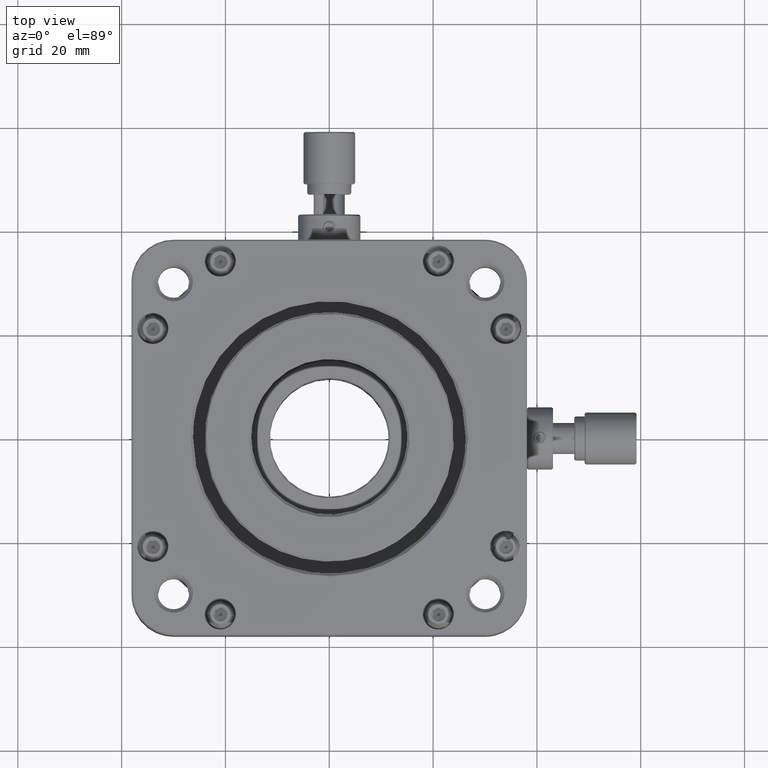
[diagram: clean part render]
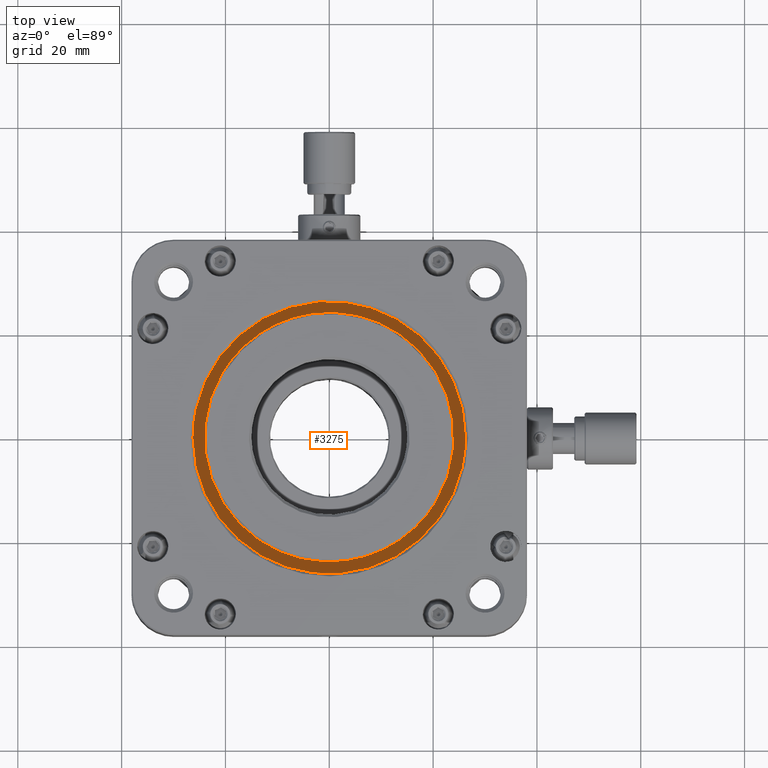
[diagram: same view with one face highlighted and labeled with its STEP entity id]
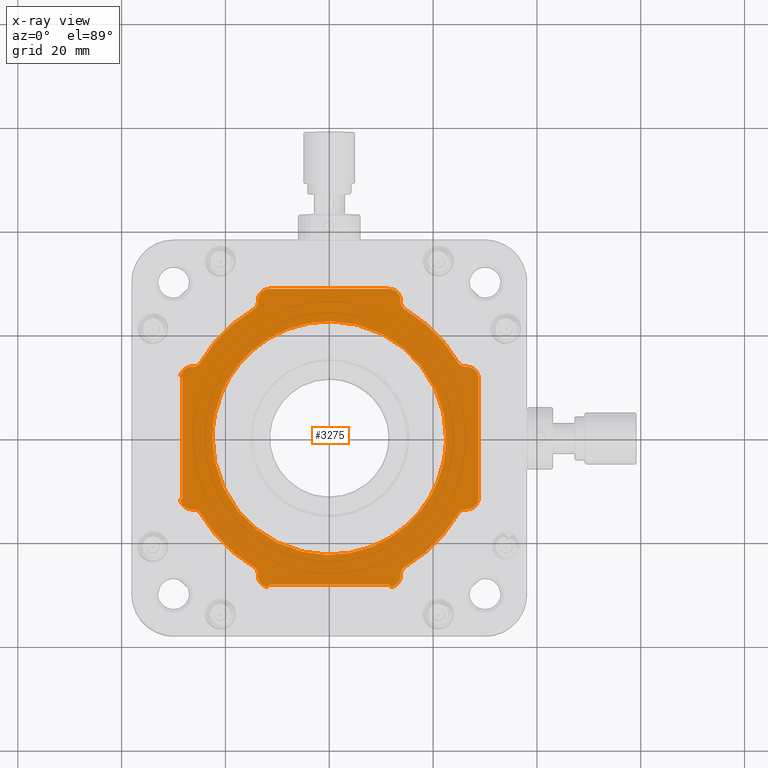
[diagram: x-ray of the same camera — body ghosted, the highlighted face saturated]
A machine part, top view. The second image highlights one B-rep face of the part: STEP entity #3275.
The next image is the same camera in x-ray: the body ghosted, the highlighted face saturated — about 0% of this face is hidden behind the body in this view.
In plain terms, the highlighted face is a freeform B-spline surface patch.
Its self-contained STEP definition (entity closure, byte-faithful):
#98 = CARTESIAN_POINT ( 'NONE',  ( -11.50000000000019895, 28.74999999999944933, 3.999999999999144684 ) ) ;
#248 = CARTESIAN_POINT ( 'NONE',  ( -13.75000000000052047, -25.96351153722971716, 3.999999999999142464 ) ) ;
#251 = CARTESIAN_POINT ( 'NONE',  ( 13.74999999999923794, -26.26785107312819889, 3.999999999999150013 ) ) ;
#318 = CARTESIAN_POINT ( 'NONE',  ( -13.75000000000060041, -26.50000000000060041, 3.999999999999144684 ) ) ;
#385 = EDGE_LOOP ( 'NONE', ( #20460, #19325 ) ) ;
#396 = B_SPLINE_CURVE_WITH_KNOTS ( 'NONE', 3,
 ( #8572, #499, #8692, #24654, #10729, #4270, #18594, #24787, #6151, #98 ),
 .UNSPECIFIED., .F., .F.,
 ( 4, 2, 2, 2, 4 ),
 ( -1.000000000000000000, -0.7500000000000000000, -0.5000000000000000000, -0.2500000000000000000, -0.000000000000000000 ),
 .UNSPECIFIED. ) ;
#414 = CARTESIAN_POINT ( 'NONE',  ( -24.76067929024345204, -14.61065573770557968, 3.999999999999140687 ) ) ;
#499 = CARTESIAN_POINT ( 'NONE',  ( -13.75000000000008349, 26.79835122402761627, 3.999999999999142464 ) ) ;
#536 = CARTESIAN_POINT ( 'NONE',  ( -26.50000000000049738, -13.75000000000060041, 3.999999999999140687 ) ) ;
#631 = FACE_OUTER_BOUND ( 'NONE', #4859, .T. ) ;
#822 = CARTESIAN_POINT ( 'NONE',  ( 13.74999999999959854, 26.49999999999934985, 3.999999999999150013 ) ) ;
#830 = B_SPLINE_CURVE_WITH_KNOTS ( 'NONE', 1,
 ( #10157, #18280 ),
 .UNSPECIFIED., .F., .F.,
 ( 2, 2 ),
 ( -1.000000000000000000, -0.000000000000000000 ),
 .UNSPECIFIED. ) ;
#919 = B_SPLINE_CURVE_WITH_KNOTS ( 'NONE', 3,
 ( #16685, #26302, #22765, #4397, #6547, #4526, #10321, #8564, #12630, #8297 ),
 .UNSPECIFIED., .F., .F.,
 ( 4, 2, 2, 2, 4 ),
 ( -1.000000000000000000, -0.7500000000000000000, -0.5000000000000000000, -0.2500000000000000000, -0.000000000000000000 ),
 .UNSPECIFIED. ) ;
#965 = EDGE_CURVE ( 'NONE', #22274, #22051, #13403, .T. ) ;
#986 = CARTESIAN_POINT ( 'NONE',  ( 13.74999999999923794, -26.26785107312819889, 3.999999999999150013 ) ) ;
#1062 = CARTESIAN_POINT ( 'NONE',  ( 13.30194980097353152, 27.88004009014238349, 3.999999999999146461 ) ) ;
#1134 = CARTESIAN_POINT ( 'NONE',  ( 28.74999999999953815, 11.79838587626113267, 3.999999999999150013 ) ) ;
#1185 = EDGE_CURVE ( 'NONE', #17849, #14123, #18858, .T. ) ;
#1186 = CARTESIAN_POINT ( 'NONE',  ( 26.26785107312669609, -13.75000000000100009, 3.999999999999150013 ) ) ;
#1217 = CARTESIAN_POINT ( 'NONE',  ( -22.50000000000049738, -6.055234243960429280E-13, 3.999999999999140687 ) ) ;
#1400 = CARTESIAN_POINT ( 'NONE',  ( 26.79835122402048242, 13.74999999999946532, 3.999999999999149125 ) ) ;
#1429 = CARTESIAN_POINT ( 'NONE',  ( -11.50000000000069456, -27.80000000000049809, 3.999999999999908074 ) ) ;
#1461 = VERTEX_POINT ( 'NONE', #24202 ) ;
#1496 = EDGE_CURVE ( 'NONE', #24271, #13898, #830, .T. ) ;
#1515 = ORIENTED_EDGE ( 'NONE', *, *, #18861, .F. ) ;
#1534 = CARTESIAN_POINT ( 'NONE',  ( 27.08540938439834989, 13.69289076818723316, 3.999999999999150013 ) ) ;
#1552 = CARTESIAN_POINT ( 'NONE',  ( 26.49999999999955236, 13.74999999999939959, 3.999999999999150013 ) ) ;
#1605 = CARTESIAN_POINT ( 'NONE',  ( 28.74999999999944933, -11.50000000000099831, 3.999999999999150013 ) ) ;
#1620 = CARTESIAN_POINT ( 'NONE',  ( -11.50000000000019895, 28.74999999999944933, 3.999999999999144684 ) ) ;
#1828 = CARTESIAN_POINT ( 'NONE',  ( -13.82941172880655500, 25.66430499280422950, 3.999999999999142464 ) ) ;
#1857 = CARTESIAN_POINT ( 'NONE',  ( 21.18531010641744672, 19.47333278919100508, 3.999999999999148237 ) ) ;
#1970 = CARTESIAN_POINT ( 'NONE',  ( -28.27500000000045333, -11.50000000000054001, 3.999999999999415579 ) ) ;
#2116 = CARTESIAN_POINT ( 'NONE',  ( 28.74999999999959854, 28.74999999999930012, 3.999999999999150013 ) ) ;
#2268 = CARTESIAN_POINT ( 'NONE',  ( 14.61065573770430071, -24.76067929024380021, 3.999999999999150013 ) ) ;
#2385 = EDGE_CURVE ( 'NONE', #4476, #6704, #26541, .T. ) ;
#2396 = VERTEX_POINT ( 'NONE', #26062 ) ;
#2556 = VERTEX_POINT ( 'NONE', #15118 ) ;
#2582 = B_SPLINE_CURVE_WITH_KNOTS ( 'NONE', 3,
 ( #23315, #15333, #5054, #25329, #11002, #19526 ),
 .UNSPECIFIED., .F., .F.,
 ( 4, 2, 4 ),
 ( -1.000000000000000000, -0.5000000000000000000, -0.000000000000000000 ),
 .UNSPECIFIED. ) ;
#2621 = CARTESIAN_POINT ( 'NONE',  ( 26.49999999999944933, -13.75000000000100009, 3.999999999999150013 ) ) ;
#2758 = VERTEX_POINT ( 'NONE', #23627 ) ;
#2900 = CARTESIAN_POINT ( 'NONE',  ( -15.65327483654644425, 24.14545591368804267, 3.999999999999142908 ) ) ;
#3153 = B_SPLINE_CURVE_WITH_KNOTS ( 'NONE', 3,
 ( #11218, #9301, #17568, #11751, #19596, #25788, #21627, #17964, #20004, #26187 ),
 .UNSPECIFIED., .F., .F.,
 ( 4, 2, 2, 2, 4 ),
 ( -1.000000000000000000, -0.7500000000000000000, -0.5000000000000000000, -0.2500000000000000000, -0.000000000000000000 ),
 .UNSPECIFIED. ) ;
#3216 = CARTESIAN_POINT ( 'NONE',  ( 13.46454824691686980, 27.63667699512514631, 3.999999999999147349 ) ) ;
#3275 = ADVANCED_FACE ( 'NONE', ( #23171, #631 ), #12789, .T. ) ;
#3297 = EDGE_CURVE ( 'NONE', #24180, #12745, #396, .T. ) ;
#3330 = VERTEX_POINT ( 'NONE', #18983 ) ;
#3534 = CARTESIAN_POINT ( 'NONE',  ( -13.75000000000060041, -26.26785107312789691, 3.999999999999144684 ) ) ;
#3571 = CARTESIAN_POINT ( 'NONE',  ( 27.63666606124350267, 13.46456712811252565, 3.999999999999150013 ) ) ;
#3648 = EDGE_CURVE ( 'NONE', #12745, #15845, #9675, .T. ) ;
#3825 = EDGE_CURVE ( 'NONE', #14123, #14577, #5504, .T. ) ;
#3923 = CARTESIAN_POINT ( 'NONE',  ( -25.13579206756573114, 14.13121387687324670, 3.999999999999141576 ) ) ;
#3993 = VERTEX_POINT ( 'NONE', #6360 ) ;
#4024 = CARTESIAN_POINT ( 'NONE',  ( -26.26785107312789691, -13.75000000000055955, 3.999999999999140687 ) ) ;
#4194 = ORIENTED_EDGE ( 'NONE', *, *, #18390, .F. ) ;
#4270 = CARTESIAN_POINT ( 'NONE',  ( -12.88004009013650553, 28.30194980098267266, 3.999999999999142908 ) ) ;
#4313 = CARTESIAN_POINT ( 'NONE',  ( 11.49999999999960032, 28.74999999999934985, 3.999999999999144684 ) ) ;
#4314 = CARTESIAN_POINT ( 'NONE',  ( -27.88003071436140345, -13.30194042520856890, 3.999999999999140687 ) ) ;
#4324 = CARTESIAN_POINT ( 'NONE',  ( -21.18531010758993816, -19.47333278800151746, 3.999999999999140687 ) ) ;
#4394 = CARTESIAN_POINT ( 'NONE',  ( -13.75000000000060041, -26.26785107312789691, 3.999999999999144684 ) ) ;
#4397 = CARTESIAN_POINT ( 'NONE',  ( 13.46456712810837253, -27.63666606125807590, 3.999999999999147349 ) ) ;
#4430 = EDGE_CURVE ( 'NONE', #10954, #7359, #20659, .T. ) ;
#4476 = VERTEX_POINT ( 'NONE', #12473 ) ;
#4526 = CARTESIAN_POINT ( 'NONE',  ( 12.88004009008466255, -28.30194980100985092, 3.999999999999148237 ) ) ;
#4565 = CARTESIAN_POINT ( 'NONE',  ( 13.74999999999959854, 26.26785107312669609, 3.999999999999150013 ) ) ;
#4598 = CARTESIAN_POINT ( 'NONE',  ( -22.50000000000049738, -6.055234243960429280E-13, 3.999999999999140687 ) ) ;
#4645 = CARTESIAN_POINT ( 'NONE',  ( -21.98411349738861276, 18.56682008198552225, 3.999999999999141576 ) ) ;
#4692 = CARTESIAN_POINT ( 'NONE',  ( -26.79838587623094881, 13.74999999999962341, 3.999999999999140687 ) ) ;
#4704 = CARTESIAN_POINT ( 'NONE',  ( -23.46709536486446979, -16.65303365374226630, 3.999999999999142464 ) ) ;
#4859 = EDGE_LOOP ( 'NONE', ( #23153, #4889, #17879, #20580, #4194, #16096, #25157, #16849, #6536, #19770, #6234, #26253, #13116, #10748, #12737, #19906, #6113, #14463, #5725, #16713, #22989, #23797, #20612, #24403, #24976, #8193, #17821, #1515, #7730, #11148, #10509, #26061 ) ) ;
#4889 = ORIENTED_EDGE ( 'NONE', *, *, #22890, .F. ) ;
#4958 = CARTESIAN_POINT ( 'NONE',  ( 26.49999999999944933, -13.75000000000100009, 3.999999999999150013 ) ) ;
#4981 = CARTESIAN_POINT ( 'NONE',  ( 22.49999999999949907, -6.427822572771599099E-13, 3.999999999999144684 ) ) ;
#5054 = CARTESIAN_POINT ( 'NONE',  ( 25.13580069055921840, 14.13122897720175786, 3.999999999999148237 ) ) ;
#5078 = CARTESIAN_POINT ( 'NONE',  ( 13.69290964938301514, 27.08539845051663519, 3.999999999999148237 ) ) ;
#5093 = CARTESIAN_POINT ( 'NONE',  ( -11.50000000000060041, -28.75000000000056133, 3.999999999999142908 ) ) ;
#5191 = CARTESIAN_POINT ( 'NONE',  ( -25.96344373617076329, -13.75000000000064126, 3.999999999999141576 ) ) ;
#5221 = EDGE_CURVE ( 'NONE', #10717, #22274, #10578, .T. ) ;
#5251 = VERTEX_POINT ( 'NONE', #4024 ) ;
#5290 = CARTESIAN_POINT ( 'NONE',  ( -26.50000000000049738, -13.75000000000060041, 3.999999999999140687 ) ) ;
#5315 = CARTESIAN_POINT ( 'NONE',  ( 26.49999999999944933, -13.75000000000100009, 3.999999999999150013 ) ) ;
#5351 = CARTESIAN_POINT ( 'NONE',  ( 27.88004009014993301, -13.30194980098323754, 3.999999999999149125 ) ) ;
#5504 = B_SPLINE_CURVE_WITH_KNOTS ( 'NONE', 3,
 ( #4565, #24954, #6321, #12672, #6455, #20924 ),
 .UNSPECIFIED., .F., .F.,
 ( 4, 2, 4 ),
 ( -1.000000000000000000, -0.5000000000000000000, -0.000000000000000000 ),
 .UNSPECIFIED. ) ;
#5599 = CARTESIAN_POINT ( 'NONE',  ( -13.75000000000040146, 26.26785107312684531, 3.999999999999144684 ) ) ;
#5717 = CARTESIAN_POINT ( 'NONE',  ( 25.13579206766814877, -14.13121387679679941, 3.999999999999149125 ) ) ;
#5725 = ORIENTED_EDGE ( 'NONE', *, *, #965, .F. ) ;
#5728 = CARTESIAN_POINT ( 'NONE',  ( 24.76067929024249992, 14.61065573770433978, 3.999999999999150013 ) ) ;
#6113 = ORIENTED_EDGE ( 'NONE', *, *, #16873, .F. ) ;
#6151 = CARTESIAN_POINT ( 'NONE',  ( -11.79838587622782242, 28.74999999999943867, 3.999999999999143796 ) ) ;
#6234 = ORIENTED_EDGE ( 'NONE', *, *, #24710, .F. ) ;
#6321 = CARTESIAN_POINT ( 'NONE',  ( 13.82942682913912336, 25.66431361578245429, 3.999999999999148237 ) ) ;
#6360 = CARTESIAN_POINT ( 'NONE',  ( -26.26785107312779743, 13.74999999999955946, 3.999999999999140687 ) ) ;
#6375 = CARTESIAN_POINT ( 'NONE',  ( -12.88003071436716063, -28.30194042518967379, 3.999999999999142908 ) ) ;
#6397 = EDGE_CURVE ( 'NONE', #7359, #24180, #17083, .T. ) ;
#6422 = EDGE_CURVE ( 'NONE', #3330, #13654, #25713, .T. ) ;
#6455 = CARTESIAN_POINT ( 'NONE',  ( 14.34848765271519788, 24.91537810081576509, 3.999999999999148237 ) ) ;
#6536 = ORIENTED_EDGE ( 'NONE', *, *, #16965, .F. ) ;
#6547 = CARTESIAN_POINT ( 'NONE',  ( 13.30194042525332243, -27.88003071433081104, 3.999999999999147349 ) ) ;
#6656 = EDGE_CURVE ( 'NONE', #18571, #10954, #12523, .T. ) ;
#6704 = VERTEX_POINT ( 'NONE', #17341 ) ;
#6723 = CARTESIAN_POINT ( 'NONE',  ( 12.63666606124142433, 28.46456712810185863, 3.999999999999146461 ) ) ;
#6805 = CARTESIAN_POINT ( 'NONE',  ( -24.76067929024350178, 14.61065573770433978, 3.999999999999140687 ) ) ;
#6885 = CARTESIAN_POINT ( 'NONE',  ( -22.50000000000059330, -45.00000000000004974, 3.999999999999132694 ) ) ;
#6988 = B_SPLINE_CURVE_WITH_KNOTS ( 'NONE', 1,
 ( #23800, #5290 ),
 .UNSPECIFIED., .F., .F.,
 ( 2, 2 ),
 ( -1.000000000000000000, -0.000000000000000000 ),
 .UNSPECIFIED. ) ;
#6990 = CARTESIAN_POINT ( 'NONE',  ( -26.50000000000045119, 13.74999999999959854, 3.999999999999140687 ) ) ;
#6997 = CARTESIAN_POINT ( 'NONE',  ( 28.74999999999944933, -11.50000000000099831, 3.999999999999150013 ) ) ;
#7004 = CARTESIAN_POINT ( 'NONE',  ( -12.08540938440891388, -28.69289076819791617, 3.999999999999142908 ) ) ;
#7202 = CARTESIAN_POINT ( 'NONE',  ( 28.69290964938298316, 12.08539845053501161, 3.999999999999150013 ) ) ;
#7286 = CARTESIAN_POINT ( 'NONE',  ( -22.50000000000041211, 44.99999999999944578, 3.999999999999132694 ) ) ;
#7345 = CARTESIAN_POINT ( 'NONE',  ( 24.91537810083648452, -14.34848765268158921, 3.999999999999149125 ) ) ;
#7359 = VERTEX_POINT ( 'NONE', #26476 ) ;
#7520 = CARTESIAN_POINT ( 'NONE',  ( 26.79838587621540213, -13.75000000000094325, 3.999999999999150013 ) ) ;
#7542 = CARTESIAN_POINT ( 'NONE',  ( -26.50000000000049738, -13.75000000000060041, 3.999999999999140687 ) ) ;
#7611 = CARTESIAN_POINT ( 'NONE',  ( 26.26785107312669609, -13.75000000000100009, 3.999999999999150013 ) ) ;
#7620 = CARTESIAN_POINT ( 'NONE',  ( -14.61065573770541981, 24.76067929024240044, 3.999999999999144684 ) ) ;
#7707 = EDGE_CURVE ( 'NONE', #6704, #3330, #919, .T. ) ;
#7730 = ORIENTED_EDGE ( 'NONE', *, *, #3648, .F. ) ;
#7850 = VERTEX_POINT ( 'NONE', #19505 ) ;
#7886 = CARTESIAN_POINT ( 'NONE',  ( -13.75000000000051337, 25.96344373616965839, 3.999999999999142908 ) ) ;
#8193 = ORIENTED_EDGE ( 'NONE', *, *, #3825, .F. ) ;
#8217 = CARTESIAN_POINT ( 'NONE',  ( -25.66431361580831094, 13.82942682912441690, 3.999999999999142464 ) ) ;
#8297 = CARTESIAN_POINT ( 'NONE',  ( 11.49999999999939959, -28.75000000000064304, 3.999999999999147349 ) ) ;
#8350 = CARTESIAN_POINT ( 'NONE',  ( -26.26785107312779743, 13.74999999999955946, 3.999999999999140687 ) ) ;
#8456 = CARTESIAN_POINT ( 'NONE',  ( -14.13121387683284524, -25.13579206764201146, 3.999999999999142464 ) ) ;
#8524 = CARTESIAN_POINT ( 'NONE',  ( -13.75000000000052403, -26.79838587623950374, 3.999999999999142908 ) ) ;
#8564 = CARTESIAN_POINT ( 'NONE',  ( 12.08539845048883876, -28.69290964938408095, 3.999999999999148237 ) ) ;
#8572 = CARTESIAN_POINT ( 'NONE',  ( -13.75000000000019895, 26.49999999999944933, 3.999999999999144684 ) ) ;
#8677 = CARTESIAN_POINT ( 'NONE',  ( -14.61065573770541981, 24.76067929024240044, 3.999999999999144684 ) ) ;
#8692 = CARTESIAN_POINT ( 'NONE',  ( -13.69289076818191830, 27.08540938441970525, 3.999999999999142908 ) ) ;
#8728 = CARTESIAN_POINT ( 'NONE',  ( -28.75000000000045475, 11.49999999999949729, 3.999999999999139799 ) ) ;
#8964 = CARTESIAN_POINT ( 'NONE',  ( 26.26785107312669609, -13.75000000000100009, 3.999999999999150013 ) ) ;
#8990 = CARTESIAN_POINT ( 'NONE',  ( -26.79835122405221526, -13.75000000000069811, 3.999999999999140687 ) ) ;
#9108 = CARTESIAN_POINT ( 'NONE',  ( -25.13580069053923438, -14.13122897720095317, 3.999999999999141576 ) ) ;
#9124 = CARTESIAN_POINT ( 'NONE',  ( -27.88004009011954665, 13.30194980098885082, 3.999999999999141576 ) ) ;
#9253 = CARTESIAN_POINT ( 'NONE',  ( 12.88003071436494551, 28.30194042519596920, 3.999999999999147349 ) ) ;
#9301 = CARTESIAN_POINT ( 'NONE',  ( 24.14547292137302037, -15.65324601362199886, 3.999999999999149125 ) ) ;
#9388 = B_SPLINE_CURVE_WITH_KNOTS ( 'NONE', 3,
 ( #14136, #22373, #20367, #24658, #24118, #1857, #14267, #18325, #26554, #13863 ),
 .UNSPECIFIED., .F., .F.,
 ( 4, 2, 2, 2, 4 ),
 ( -1.000000000000000000, -0.7500000000000000000, -0.5000000000000000000, -0.2500000000000000000, -0.000000000000000000 ),
 .UNSPECIFIED. ) ;
#9482 = B_SPLINE_CURVE_WITH_KNOTS ( 'NONE', 1,
 ( #19919, #15859 ),
 .UNSPECIFIED., .F., .F.,
 ( 2, 2 ),
 ( 0.1290322580645128225, 0.8709677419354869832 ),
 .UNSPECIFIED. ) ;
#9622 = CARTESIAN_POINT ( 'NONE',  ( 25.66431361570377945, -13.82942682920361044, 3.999999999999149125 ) ) ;
#9675 = B_SPLINE_CURVE_WITH_KNOTS ( 'NONE', 1,
 ( #1620, #14039 ),
 .UNSPECIFIED., .F., .F.,
 ( 2, 2 ),
 ( -1.000000000000000000, -0.000000000000000000 ),
 .UNSPECIFIED. ) ;
#9782 = CARTESIAN_POINT ( 'NONE',  ( -26.50000000000045119, 13.74999999999959854, 3.999999999999140687 ) ) ;
#9829 = B_SPLINE_CURVE_WITH_KNOTS ( 'NONE', 3,
 ( #4313, #23602, #17002, #6723, #9253, #1062, #3216, #5078, #13340, #19280 ),
 .UNSPECIFIED., .F., .F.,
 ( 4, 2, 2, 2, 4 ),
 ( -1.000000000000000000, -0.7500000000000000000, -0.5000000000000000000, -0.2500000000000000000, -0.000000000000000000 ),
 .UNSPECIFIED. ) ;
#9866 = B_SPLINE_CURVE_WITH_KNOTS ( 'NONE', 1,
 ( #25338, #12655 ),
 .UNSPECIFIED., .F., .F.,
 ( 2, 2 ),
 ( -1.000000000000000000, -0.000000000000000000 ),
 .UNSPECIFIED. ) ;
#9873 = VERTEX_POINT ( 'NONE', #1970 ) ;
#10157 = CARTESIAN_POINT ( 'NONE',  ( 26.26785107312694834, 13.74999999999939959, 3.999999999999150013 ) ) ;
#10173 = CARTESIAN_POINT ( 'NONE',  ( -14.34854604570018211, 24.91534364458079764, 3.999999999999142464 ) ) ;
#10183 = CARTESIAN_POINT ( 'NONE',  ( 11.49999999999919886, -27.80000000000049809, 3.999999999999901412 ) ) ;
#10223 = EDGE_CURVE ( 'NONE', #13898, #20180, #23967, .T. ) ;
#10320 = CARTESIAN_POINT ( 'NONE',  ( 13.74999999999959854, 26.26785107312669609, 3.999999999999150013 ) ) ;
#10321 = CARTESIAN_POINT ( 'NONE',  ( 12.63667699515263720, -28.46454824691785390, 3.999999999999147349 ) ) ;
#10451 = CARTESIAN_POINT ( 'NONE',  ( -13.75000000000060041, -26.50000000000060041, 3.999999999999144684 ) ) ;
#10482 = CARTESIAN_POINT ( 'NONE',  ( 14.34854604577438053, -24.91534364453764283, 3.999999999999148237 ) ) ;
#10509 = ORIENTED_EDGE ( 'NONE', *, *, #6397, .F. ) ;
#10578 = B_SPLINE_CURVE_WITH_KNOTS ( 'NONE', 3,
 ( #6997, #15236, #15372, #17789, #11440, #5351, #23478, #17658, #7520, #4958 ),
 .UNSPECIFIED., .F., .F.,
 ( 4, 2, 2, 2, 4 ),
 ( -1.000000000000000000, -0.7500000000000000000, -0.5000000000000000000, -0.2500000000000000000, -0.000000000000000000 ),
 .UNSPECIFIED. ) ;
#10717 = VERTEX_POINT ( 'NONE', #1605 ) ;
#10729 = CARTESIAN_POINT ( 'NONE',  ( -13.30194042520312614, 27.88003071435571556, 3.999999999999142908 ) ) ;
#10748 = ORIENTED_EDGE ( 'NONE', *, *, #7707, .F. ) ;
#10954 = VERTEX_POINT ( 'NONE', #13849 ) ;
#10980 = CARTESIAN_POINT ( 'NONE',  ( -21.18530712967907093, 19.47332981122203321, 3.999999999999142464 ) ) ;
#11002 = CARTESIAN_POINT ( 'NONE',  ( 25.96344373619789891, 13.74999999999952216, 3.999999999999150013 ) ) ;
#11147 = CARTESIAN_POINT ( 'NONE',  ( -24.91534364455120354, -14.34854604575218850, 3.999999999999140687 ) ) ;
#11148 = ORIENTED_EDGE ( 'NONE', *, *, #3297, .F. ) ;
#11203 = CARTESIAN_POINT ( 'NONE',  ( -24.76067929024350178, 14.61065573770433978, 3.999999999999140687 ) ) ;
#11218 = CARTESIAN_POINT ( 'NONE',  ( 24.76067929024245018, -14.61065573770579995, 3.999999999999150013 ) ) ;
#11316 = CARTESIAN_POINT ( 'NONE',  ( -12.63666606123501523, -28.46456712810419987, 3.999999999999142464 ) ) ;
#11381 = CARTESIAN_POINT ( 'NONE',  ( 28.74999999999954881, 11.49999999999940137, 3.999999999999150013 ) ) ;
#11440 = CARTESIAN_POINT ( 'NONE',  ( 28.30194042518857600, -12.88003071435802305, 3.999999999999150013 ) ) ;
#11525 = B_SPLINE_CURVE_WITH_KNOTS ( 'NONE', 3,
 ( #8350, #20545, #8217, #3923, #22946, #26465 ),
 .UNSPECIFIED., .F., .F.,
 ( 4, 2, 4 ),
 ( -1.000000000000000000, -0.5000000000000000000, -0.000000000000000000 ),
 .UNSPECIFIED. ) ;
#11624 = CARTESIAN_POINT ( 'NONE',  ( 13.74999999999923794, -26.50000000000069988, 3.999999999999150013 ) ) ;
#11751 = CARTESIAN_POINT ( 'NONE',  ( 21.98411349810638882, -18.56682008119088323, 3.999999999999149125 ) ) ;
#12344 = CARTESIAN_POINT ( 'NONE',  ( -14.13122897719300219, 25.13580069056772714, 3.999999999999142908 ) ) ;
#12473 = CARTESIAN_POINT ( 'NONE',  ( 13.74999999999923794, -26.26785107312819889, 3.999999999999150013 ) ) ;
#12523 = B_SPLINE_CURVE_WITH_KNOTS ( 'NONE', 3,
 ( #6805, #12897, #21398, #4645, #10980, #19097, #21138, #25694, #2900, #8677 ),
 .UNSPECIFIED., .F., .F.,
 ( 4, 2, 2, 2, 4 ),
 ( -1.000000000000000000, -0.7500000000000000000, -0.5000000000000000000, -0.2500000000000000000, -0.000000000000000000 ),
 .UNSPECIFIED. ) ;
#12548 = CARTESIAN_POINT ( 'NONE',  ( -24.14545591420573345, -15.65327483567114797, 3.999999999999141576 ) ) ;
#12630 = CARTESIAN_POINT ( 'NONE',  ( 11.79838587621506463, -28.75000000000064659, 3.999999999999147349 ) ) ;
#12651 = CARTESIAN_POINT ( 'NONE',  ( -13.75000000000060041, -26.26785107312789691, 3.999999999999144684 ) ) ;
#12655 = CARTESIAN_POINT ( 'NONE',  ( 28.74999999999944933, -11.50000000000099831, 3.999999999999150013 ) ) ;
#12672 = CARTESIAN_POINT ( 'NONE',  ( 14.13121387685850827, 25.13579206758930340, 3.999999999999146461 ) ) ;
#12689 = CARTESIAN_POINT ( 'NONE',  ( -21.98409991957493759, -18.56683073009556750, 3.999999999999141576 ) ) ;
#12719 = VERTEX_POINT ( 'NONE', #7542 ) ;
#12737 = ORIENTED_EDGE ( 'NONE', *, *, #2385, .F. ) ;
#12745 = VERTEX_POINT ( 'NONE', #17948 ) ;
#12765 = CARTESIAN_POINT ( 'NONE',  ( -14.61065573770540027, -24.76067929024365100, 3.999999999999144684 ) ) ;
#12789 = B_SPLINE_SURFACE_WITH_KNOTS ( 'NONE', 1, 1, ( 
 ( #18859, #2116 ),
 ( #16560, #18723 ) ),
 .UNSPECIFIED., .F., .F., .F.,
 ( 2, 2 ),
 ( 2, 2 ),
 ( 0.000000000000000000, 1.000000000000000000 ),
 ( 0.000000000000000000, 1.000000000000000000 ),
 .UNSPECIFIED. ) ;
#12815 = CARTESIAN_POINT ( 'NONE',  ( -28.69289076818726514, 12.08540938440354573, 3.999999999999139799 ) ) ;
#12897 = CARTESIAN_POINT ( 'NONE',  ( -24.14547292104868248, 15.65324601417196426, 3.999999999999141576 ) ) ;
#12962 = CARTESIAN_POINT ( 'NONE',  ( -24.76067929024345204, -14.61065573770557968, 3.999999999999140687 ) ) ;
#12984 = B_SPLINE_CURVE_WITH_KNOTS ( 'NONE', 3,
 ( #536, #8990, #25221, #20799, #4314, #16731, #17261, #16866, #14700, #25483 ),
 .UNSPECIFIED., .F., .F.,
 ( 4, 2, 2, 2, 4 ),
 ( -1.000000000000000000, -0.7500000000000000000, -0.5000000000000000000, -0.2500000000000000000, -0.000000000000000000 ),
 .UNSPECIFIED. ) ;
#13090 = CARTESIAN_POINT ( 'NONE',  ( -13.69290964938398503, -27.08539845051332051, 3.999999999999142908 ) ) ;
#13116 = ORIENTED_EDGE ( 'NONE', *, *, #6422, .F. ) ;
#13340 = CARTESIAN_POINT ( 'NONE',  ( 13.74999999999955591, 26.79838587624281843, 3.999999999999147349 ) ) ;
#13403 = B_SPLINE_CURVE_WITH_KNOTS ( 'NONE', 1,
 ( #5315, #8964 ),
 .UNSPECIFIED., .F., .F.,
 ( 2, 2 ),
 ( -1.000000000000000000, -0.000000000000000000 ),
 .UNSPECIFIED. ) ;
#13551 = EDGE_CURVE ( 'NONE', #12719, #9873, #12984, .T. ) ;
#13654 = VERTEX_POINT ( 'NONE', #21835 ) ;
#13774 = EDGE_CURVE ( 'NONE', #14577, #14909, #9388, .T. ) ;
#13849 = CARTESIAN_POINT ( 'NONE',  ( -14.61065573770541981, 24.76067929024240044, 3.999999999999144684 ) ) ;
#13863 = CARTESIAN_POINT ( 'NONE',  ( 24.76067929024249992, 14.61065573770433978, 3.999999999999150013 ) ) ;
#13898 = VERTEX_POINT ( 'NONE', #1552 ) ;
#13970 = CARTESIAN_POINT ( 'NONE',  ( 24.76067929024245018, -14.61065573770579995, 3.999999999999150013 ) ) ;
#14039 = CARTESIAN_POINT ( 'NONE',  ( 11.49999999999960032, 28.74999999999934985, 3.999999999999144684 ) ) ;
#14123 = VERTEX_POINT ( 'NONE', #15935 ) ;
#14126 = CARTESIAN_POINT ( 'NONE',  ( -26.26785107312779743, 13.74999999999955946, 3.999999999999140687 ) ) ;
#14136 = CARTESIAN_POINT ( 'NONE',  ( 14.61065573770446058, 24.76067929024230097, 3.999999999999150013 ) ) ;
#14221 = CARTESIAN_POINT ( 'NONE',  ( -13.75000000000019895, 26.49999999999944933, 3.999999999999144684 ) ) ;
#14267 = CARTESIAN_POINT ( 'NONE',  ( 21.98409992036812000, 18.56683072874841756, 3.999999999999149125 ) ) ;
#14346 = CARTESIAN_POINT ( 'NONE',  ( 11.49999999999960032, 28.74999999999934985, 3.999999999999144684 ) ) ;
#14404 = B_SPLINE_CURVE_WITH_KNOTS ( 'NONE', 3,
 ( #12651, #248, #24402, #8456, #24934, #16707 ),
 .UNSPECIFIED., .F., .F.,
 ( 4, 2, 4 ),
 ( -1.000000000000000000, -0.5000000000000000000, -0.000000000000000000 ),
 .UNSPECIFIED. ) ;
#14463 = ORIENTED_EDGE ( 'NONE', *, *, #18423, .F. ) ;
#14577 = VERTEX_POINT ( 'NONE', #19959 ) ;
#14619 = CARTESIAN_POINT ( 'NONE',  ( -13.30194980097332369, -27.88004009015103435, 3.999999999999142908 ) ) ;
#14700 = CARTESIAN_POINT ( 'NONE',  ( -28.75000000000054712, -11.79838587624437807, 3.999999999999140687 ) ) ;
#14743 = CARTESIAN_POINT ( 'NONE',  ( -13.46454824691783614, -27.63667699513088749, 3.999999999999142908 ) ) ;
#14828 = CARTESIAN_POINT ( 'NONE',  ( -28.30194042522079911, 12.88003071434983227, 3.999999999999141576 ) ) ;
#14909 = VERTEX_POINT ( 'NONE', #5728 ) ;
#14977 = CARTESIAN_POINT ( 'NONE',  ( -15.65324601354068790, -24.14547292142200874, 3.999999999999142908 ) ) ;
#15118 = CARTESIAN_POINT ( 'NONE',  ( -26.50000000000045119, 13.74999999999959854, 3.999999999999140687 ) ) ;
#15212 = CARTESIAN_POINT ( 'NONE',  ( -24.76067929024345204, -14.61065573770557968, 3.999999999999140687 ) ) ;
#15215 = EDGE_CURVE ( 'NONE', #14909, #24271, #2582, .T. ) ;
#15236 = CARTESIAN_POINT ( 'NONE',  ( 28.74999999999945643, -11.79835122404498904, 3.999999999999149125 ) ) ;
#15333 = CARTESIAN_POINT ( 'NONE',  ( 24.91534364455013772, 14.34854604575133763, 3.999999999999149125 ) ) ;
#15372 = CARTESIAN_POINT ( 'NONE',  ( 28.69289076818336071, -12.08540938443231383, 3.999999999999150013 ) ) ;
#15845 = VERTEX_POINT ( 'NONE', #14346 ) ;
#15859 = CARTESIAN_POINT ( 'NONE',  ( -27.80000000000005045, 11.49999999999969980, 3.999999999999690470 ) ) ;
#15935 = CARTESIAN_POINT ( 'NONE',  ( 13.74999999999959854, 26.26785107312669609, 3.999999999999150013 ) ) ;
#15973 = B_SPLINE_CURVE_WITH_KNOTS ( 'NONE', 3,
 ( #7611, #25832, #9622, #5717, #7345, #13970 ),
 .UNSPECIFIED., .F., .F.,
 ( 4, 2, 4 ),
 ( -1.000000000000000000, -0.5000000000000000000, -0.000000000000000000 ),
 .UNSPECIFIED. ) ;
#16013 = VERTEX_POINT ( 'NONE', #3534 ) ;
#16016 = CARTESIAN_POINT ( 'NONE',  ( -13.75000000000019895, 26.49999999999944933, 3.999999999999144684 ) ) ;
#16096 = ORIENTED_EDGE ( 'NONE', *, *, #13551, .F. ) ;
#16560 = CARTESIAN_POINT ( 'NONE',  ( -28.75000000000060041, -28.75000000000050093, 3.999999999999140687 ) ) ;
#16685 = CARTESIAN_POINT ( 'NONE',  ( 13.74999999999923794, -26.50000000000069988, 3.999999999999150013 ) ) ;
#16707 = CARTESIAN_POINT ( 'NONE',  ( -14.61065573770540027, -24.76067929024365100, 3.999999999999144684 ) ) ;
#16713 = ORIENTED_EDGE ( 'NONE', *, *, #5221, .F. ) ;
#16731 = CARTESIAN_POINT ( 'NONE',  ( -28.30194980097898139, -12.88004009013229911, 3.999999999999140687 ) ) ;
#16849 = ORIENTED_EDGE ( 'NONE', *, *, #24576, .F. ) ;
#16866 = CARTESIAN_POINT ( 'NONE',  ( -28.69290964938398858, -12.08539845051825345, 3.999999999999140687 ) ) ;
#16873 = EDGE_CURVE ( 'NONE', #2396, #25852, #3153, .T. ) ;
#16965 = EDGE_CURVE ( 'NONE', #24867, #23489, #25656, .T. ) ;
#17001 = CARTESIAN_POINT ( 'NONE',  ( -28.46456712811438905, 12.63666606123858038, 3.999999999999139799 ) ) ;
#17002 = CARTESIAN_POINT ( 'NONE',  ( 12.08540938440056145, 28.69289076819782025, 3.999999999999148237 ) ) ;
#17083 = B_SPLINE_CURVE_WITH_KNOTS ( 'NONE', 1,
 ( #5599, #16016 ),
 .UNSPECIFIED., .F., .F.,
 ( 2, 2 ),
 ( -1.000000000000000000, -0.000000000000000000 ),
 .UNSPECIFIED. ) ;
#17261 = CARTESIAN_POINT ( 'NONE',  ( -28.46454824691774732, -12.63667699512600073, 3.999999999999140687 ) ) ;
#17326 = EDGE_CURVE ( 'NONE', #20180, #10717, #9866, .T. ) ;
#17341 = CARTESIAN_POINT ( 'NONE',  ( 13.74999999999923794, -26.50000000000069988, 3.999999999999150013 ) ) ;
#17351 = EDGE_CURVE ( 'NONE', #25852, #4476, #20189, .T. ) ;
#17373 = CARTESIAN_POINT ( 'NONE',  ( -25.66430499283481481, -13.82941172879886871, 3.999999999999139799 ) ) ;
#17392 = CARTESIAN_POINT ( 'NONE',  ( -27.63667699513902676, 13.46454824691693375, 3.999999999999141576 ) ) ;
#17451 =( BOUNDED_CURVE ( )  B_SPLINE_CURVE ( 3, ( #17555, #25775, #7286, #1217 ),
 .UNSPECIFIED., .F., .T. ) 
 B_SPLINE_CURVE_WITH_KNOTS ( ( 4, 4 ),
 ( 0.000000000000000000, 1.000000000000000000 ),
 .UNSPECIFIED. ) 
 CURVE ( )  GEOMETRIC_REPRESENTATION_ITEM ( )  RATIONAL_B_SPLINE_CURVE ( ( 1.000000000000000000, 0.3333333333333329818, 0.3333333333333329818, 1.000000000000000000 ) ) 
 REPRESENTATION_ITEM ( '' )  );
#17456 = VERTEX_POINT ( 'NONE', #17761 ) ;
#17547 = B_SPLINE_CURVE_WITH_KNOTS ( 'NONE', 1,
 ( #10451, #4394 ),
 .UNSPECIFIED., .F., .F.,
 ( 2, 2 ),
 ( -1.000000000000000000, -0.000000000000000000 ),
 .UNSPECIFIED. ) ;
#17555 = CARTESIAN_POINT ( 'NONE',  ( 22.49999999999949907, -6.427822572771599099E-13, 3.999999999999144684 ) ) ;
#17568 = CARTESIAN_POINT ( 'NONE',  ( 23.46708178633089048, -16.65304430264737690, 3.999999999999148237 ) ) ;
#17658 = CARTESIAN_POINT ( 'NONE',  ( 27.08539845048922956, -13.69290964938440602, 3.999999999999150013 ) ) ;
#17761 = CARTESIAN_POINT ( 'NONE',  ( -13.75000000000060041, -26.50000000000060041, 3.999999999999144684 ) ) ;
#17789 = CARTESIAN_POINT ( 'NONE',  ( 28.46456712811654555, -12.63666606121245195, 3.999999999999150013 ) ) ;
#17821 = ORIENTED_EDGE ( 'NONE', *, *, #1185, .F. ) ;
#17849 = VERTEX_POINT ( 'NONE', #822 ) ;
#17865 = CARTESIAN_POINT ( 'NONE',  ( 27.88003071436886771, 13.30194042520477993, 3.999999999999150013 ) ) ;
#17879 = ORIENTED_EDGE ( 'NONE', *, *, #25540, .F. ) ;
#17948 = CARTESIAN_POINT ( 'NONE',  ( -11.50000000000019895, 28.74999999999944933, 3.999999999999144684 ) ) ;
#17964 = CARTESIAN_POINT ( 'NONE',  ( 16.65303365416959380, -23.46709536461188961, 3.999999999999149125 ) ) ;
#18280 = CARTESIAN_POINT ( 'NONE',  ( 26.49999999999955236, 13.74999999999939959, 3.999999999999150013 ) ) ;
#18325 = CARTESIAN_POINT ( 'NONE',  ( 23.46709536406929431, 16.65303365508684408, 3.999999999999150013 ) ) ;
#18390 = EDGE_CURVE ( 'NONE', #9873, #2758, #9482, .T. ) ;
#18423 = EDGE_CURVE ( 'NONE', #22051, #2396, #15973, .T. ) ;
#18571 = VERTEX_POINT ( 'NONE', #11203 ) ;
#18594 = CARTESIAN_POINT ( 'NONE',  ( -12.63667699514143550, 28.46454824691680585, 3.999999999999143796 ) ) ;
#18637 = EDGE_CURVE ( 'NONE', #1461, #7850, #17451, .T. ) ;
#18716 = CARTESIAN_POINT ( 'NONE',  ( 13.74999999999959854, 26.49999999999934985, 3.999999999999150013 ) ) ;
#18723 = CARTESIAN_POINT ( 'NONE',  ( 28.74999999999939959, -28.75000000000070344, 3.999999999999150013 ) ) ;
#18726 = B_SPLINE_CURVE_WITH_KNOTS ( 'NONE', 3,
 ( #8728, #19416, #12815, #17001, #14828, #9124, #17392, #25618, #4692, #6990 ),
 .UNSPECIFIED., .F., .F.,
 ( 4, 2, 2, 2, 4 ),
 ( -1.000000000000000000, -0.7500000000000000000, -0.5000000000000000000, -0.2500000000000000000, -0.000000000000000000 ),
 .UNSPECIFIED. ) ;
#18743 = CARTESIAN_POINT ( 'NONE',  ( 13.74999999999930722, -25.96344373618197920, 3.999999999999147349 ) ) ;
#18858 = B_SPLINE_CURVE_WITH_KNOTS ( 'NONE', 1,
 ( #18716, #10320 ),
 .UNSPECIFIED., .F., .F.,
 ( 2, 2 ),
 ( -1.000000000000000000, -0.000000000000000000 ),
 .UNSPECIFIED. ) ;
#18859 = CARTESIAN_POINT ( 'NONE',  ( -28.75000000000040146, 28.74999999999949907, 3.999999999999140687 ) ) ;
#18861 = EDGE_CURVE ( 'NONE', #15845, #17849, #9829, .T. ) ;
#18875 = CARTESIAN_POINT ( 'NONE',  ( 13.82941172882099501, -25.66430499273569410, 3.999999999999147349 ) ) ;
#18924 = CARTESIAN_POINT ( 'NONE',  ( 22.49999999999939249, -45.00000000000004974, 3.999999999999142464 ) ) ;
#18983 = CARTESIAN_POINT ( 'NONE',  ( 11.49999999999922018, -28.27500000000060254, 3.999999999999524825 ) ) ;
#19097 = CARTESIAN_POINT ( 'NONE',  ( -19.47333278854846839, 21.18531010700306183, 3.999999999999142464 ) ) ;
#19280 = CARTESIAN_POINT ( 'NONE',  ( 13.74999999999959854, 26.49999999999934985, 3.999999999999150013 ) ) ;
#19296 = CARTESIAN_POINT ( 'NONE',  ( 26.26785107312694834, 13.74999999999939959, 3.999999999999150013 ) ) ;
#19325 = ORIENTED_EDGE ( 'NONE', *, *, #21792, .F. ) ;
#19416 = CARTESIAN_POINT ( 'NONE',  ( -28.75000000000045475, 11.79835122402342940, 3.999999999999139799 ) ) ;
#19505 = CARTESIAN_POINT ( 'NONE',  ( -22.50000000000049738, -6.055234243960429280E-13, 3.999999999999140687 ) ) ;
#19526 = CARTESIAN_POINT ( 'NONE',  ( 26.26785107312694834, 13.74999999999939959, 3.999999999999150013 ) ) ;
#19596 = CARTESIAN_POINT ( 'NONE',  ( 21.18530712970136420, -19.47332981112288408, 3.999999999999148237 ) ) ;
#19770 = ORIENTED_EDGE ( 'NONE', *, *, #23860, .F. ) ;
#19906 = ORIENTED_EDGE ( 'NONE', *, *, #17351, .F. ) ;
#19919 = CARTESIAN_POINT ( 'NONE',  ( -27.80000000000034532, -11.50000000000050093, 3.999999999999690470 ) ) ;
#19959 = CARTESIAN_POINT ( 'NONE',  ( 14.61065573770446058, 24.76067929024230097, 3.999999999999150013 ) ) ;
#20004 = CARTESIAN_POINT ( 'NONE',  ( 15.65327483609847725, -24.14545591395314617, 3.999999999999148237 ) ) ;
#20115 =( BOUNDED_CURVE ( )  B_SPLINE_CURVE ( 3, ( #4598, #6885, #18924, #4981 ),
 .UNSPECIFIED., .F., .F. ) 
 B_SPLINE_CURVE_WITH_KNOTS ( ( 4, 4 ),
 ( 0.000000000000000000, 1.000000000000000000 ),
 .UNSPECIFIED. ) 
 CURVE ( )  GEOMETRIC_REPRESENTATION_ITEM ( )  RATIONAL_B_SPLINE_CURVE ( ( 1.000000000000000000, 0.3333333333333329818, 0.3333333333333329818, 1.000000000000000000 ) ) 
 REPRESENTATION_ITEM ( '' )  );
#20180 = VERTEX_POINT ( 'NONE', #25672 ) ;
#20189 = B_SPLINE_CURVE_WITH_KNOTS ( 'NONE', 3,
 ( #2268, #10482, #20908, #18875, #18743, #251 ),
 .UNSPECIFIED., .F., .F.,
 ( 4, 2, 4 ),
 ( -1.000000000000000000, -0.5000000000000000000, -0.000000000000000000 ),
 .UNSPECIFIED. ) ;
#20367 = CARTESIAN_POINT ( 'NONE',  ( 16.65304430265438995, 23.46708178630307273, 3.999999999999149125 ) ) ;
#20460 = ORIENTED_EDGE ( 'NONE', *, *, #18637, .F. ) ;
#20545 = CARTESIAN_POINT ( 'NONE',  ( -25.96351153718693539, 13.74999999999950617, 3.999999999999141576 ) ) ;
#20580 = ORIENTED_EDGE ( 'NONE', *, *, #21969, .F. ) ;
#20612 = ORIENTED_EDGE ( 'NONE', *, *, #1496, .F. ) ;
#20659 = B_SPLINE_CURVE_WITH_KNOTS ( 'NONE', 3,
 ( #7620, #10173, #12344, #1828, #7886, #24636 ),
 .UNSPECIFIED., .F., .F.,
 ( 4, 2, 4 ),
 ( -1.000000000000000000, -0.5000000000000000000, -0.000000000000000000 ),
 .UNSPECIFIED. ) ;
#20799 = CARTESIAN_POINT ( 'NONE',  ( -27.63666606125606151, -13.46456712809620981, 3.999999999999140687 ) ) ;
#20811 = CARTESIAN_POINT ( 'NONE',  ( -14.61065573770540027, -24.76067929024365100, 3.999999999999144684 ) ) ;
#20908 = CARTESIAN_POINT ( 'NONE',  ( 14.13122897717616233, -25.13580069063885603, 3.999999999999148237 ) ) ;
#20924 = CARTESIAN_POINT ( 'NONE',  ( 14.61065573770446058, 24.76067929024230097, 3.999999999999150013 ) ) ;
#21042 = CARTESIAN_POINT ( 'NONE',  ( -26.26785107312789691, -13.75000000000055955, 3.999999999999140687 ) ) ;
#21138 = CARTESIAN_POINT ( 'NONE',  ( -18.56683072922002609, 21.98409992009037239, 3.999999999999142908 ) ) ;
#21197 = CARTESIAN_POINT ( 'NONE',  ( -16.65304430254173695, -23.46708178639881837, 3.999999999999142464 ) ) ;
#21398 = CARTESIAN_POINT ( 'NONE',  ( -23.46708178705092962, 16.65304430184959017, 3.999999999999142464 ) ) ;
#21627 = CARTESIAN_POINT ( 'NONE',  ( 18.56683072966568915, -21.98409991982818568, 3.999999999999148237 ) ) ;
#21792 = EDGE_CURVE ( 'NONE', #7850, #1461, #20115, .T. ) ;
#21835 = CARTESIAN_POINT ( 'NONE',  ( -11.50000000000065903, -28.27500000000055280, 3.999999999999524825 ) ) ;
#21917 = CARTESIAN_POINT ( 'NONE',  ( 28.30194980096948143, 12.88004009013363671, 3.999999999999149125 ) ) ;
#21969 = EDGE_CURVE ( 'NONE', #2758, #2556, #18726, .T. ) ;
#22042 = B_SPLINE_CURVE_WITH_KNOTS ( 'NONE', 3,
 ( #15212, #11147, #9108, #17373, #5191, #21042 ),
 .UNSPECIFIED., .F., .F.,
 ( 4, 2, 4 ),
 ( -1.000000000000000000, -0.5000000000000000000, -0.000000000000000000 ),
 .UNSPECIFIED. ) ;
#22051 = VERTEX_POINT ( 'NONE', #1186 ) ;
#22274 = VERTEX_POINT ( 'NONE', #2621 ) ;
#22373 = CARTESIAN_POINT ( 'NONE',  ( 15.65324601350576117, 24.14547292144072088, 3.999999999999149125 ) ) ;
#22765 = CARTESIAN_POINT ( 'NONE',  ( 13.69289076819090134, -27.08540938438608947, 3.999999999999148237 ) ) ;
#22890 = EDGE_CURVE ( 'NONE', #3993, #18571, #11525, .T. ) ;
#22946 = CARTESIAN_POINT ( 'NONE',  ( -24.91537810080343718, 14.34848765273809335, 3.999999999999141576 ) ) ;
#22989 = ORIENTED_EDGE ( 'NONE', *, *, #17326, .F. ) ;
#22993 = CARTESIAN_POINT ( 'NONE',  ( -11.79835122405419945, -28.75000000000056488, 3.999999999999142464 ) ) ;
#23153 = ORIENTED_EDGE ( 'NONE', *, *, #6656, .F. ) ;
#23171 = FACE_BOUND ( 'NONE', #385, .T. ) ;
#23218 = CARTESIAN_POINT ( 'NONE',  ( -18.56682008129575934, -21.98411349804099402, 3.999999999999141576 ) ) ;
#23227 = CARTESIAN_POINT ( 'NONE',  ( 14.61065573770430071, -24.76067929024380021, 3.999999999999150013 ) ) ;
#23315 = CARTESIAN_POINT ( 'NONE',  ( 24.76067929024249992, 14.61065573770433978, 3.999999999999150013 ) ) ;
#23478 = CARTESIAN_POINT ( 'NONE',  ( 27.63667699515278997, -13.46454824691826069, 3.999999999999150013 ) ) ;
#23489 = VERTEX_POINT ( 'NONE', #414 ) ;
#23602 = CARTESIAN_POINT ( 'NONE',  ( 11.79835122404852221, 28.74999999999935696, 3.999999999999148237 ) ) ;
#23627 = CARTESIAN_POINT ( 'NONE',  ( -28.27500000000040004, 11.49999999999968026, 3.999999999999415579 ) ) ;
#23797 = ORIENTED_EDGE ( 'NONE', *, *, #10223, .F. ) ;
#23800 = CARTESIAN_POINT ( 'NONE',  ( -26.26785107312789691, -13.75000000000055955, 3.999999999999140687 ) ) ;
#23860 = EDGE_CURVE ( 'NONE', #16013, #24867, #14404, .T. ) ;
#23932 = CARTESIAN_POINT ( 'NONE',  ( 26.49999999999955236, 13.74999999999939959, 3.999999999999150013 ) ) ;
#23967 = B_SPLINE_CURVE_WITH_KNOTS ( 'NONE', 3,
 ( #23932, #1400, #1534, #3571, #17865, #21917, #26086, #7202, #1134, #11381 ),
 .UNSPECIFIED., .F., .F.,
 ( 4, 2, 2, 2, 4 ),
 ( -1.000000000000000000, -0.7500000000000000000, -0.5000000000000000000, -0.2500000000000000000, -0.000000000000000000 ),
 .UNSPECIFIED. ) ;
#24044 = EDGE_CURVE ( 'NONE', #5251, #12719, #6988, .T. ) ;
#24118 = CARTESIAN_POINT ( 'NONE',  ( 19.47332981180796452, 21.18530712903415036, 3.999999999999148237 ) ) ;
#24180 = VERTEX_POINT ( 'NONE', #14221 ) ;
#24202 = CARTESIAN_POINT ( 'NONE',  ( 22.49999999999949907, -6.427822572771599099E-13, 3.999999999999144684 ) ) ;
#24248 = EDGE_CURVE ( 'NONE', #13654, #17456, #24681, .T. ) ;
#24271 = VERTEX_POINT ( 'NONE', #19296 ) ;
#24402 = CARTESIAN_POINT ( 'NONE',  ( -13.82942682916673505, -25.66431361573221892, 3.999999999999142908 ) ) ;
#24403 = ORIENTED_EDGE ( 'NONE', *, *, #15215, .F. ) ;
#24576 = EDGE_CURVE ( 'NONE', #23489, #5251, #22042, .T. ) ;
#24636 = CARTESIAN_POINT ( 'NONE',  ( -13.75000000000040146, 26.26785107312684531, 3.999999999999144684 ) ) ;
#24654 = CARTESIAN_POINT ( 'NONE',  ( -13.46456712811900758, 27.63666606122212599, 3.999999999999142464 ) ) ;
#24658 = CARTESIAN_POINT ( 'NONE',  ( 18.56682008118109906, 21.98411349813406446, 3.999999999999148237 ) ) ;
#24681 = B_SPLINE_CURVE_WITH_KNOTS ( 'NONE', 3,
 ( #5093, #22993, #7004, #11316, #6375, #14619, #14743, #13090, #8524, #318 ),
 .UNSPECIFIED., .F., .F.,
 ( 4, 2, 2, 2, 4 ),
 ( -1.000000000000000000, -0.7500000000000000000, -0.5000000000000000000, -0.2500000000000000000, -0.000000000000000000 ),
 .UNSPECIFIED. ) ;
#24710 = EDGE_CURVE ( 'NONE', #17456, #16013, #17547, .T. ) ;
#24787 = CARTESIAN_POINT ( 'NONE',  ( -12.08539845050163919, 28.69290964938291211, 3.999999999999145572 ) ) ;
#24867 = VERTEX_POINT ( 'NONE', #12765 ) ;
#24934 = CARTESIAN_POINT ( 'NONE',  ( -14.34848765265862802, -24.91537810085107552, 3.999999999999142908 ) ) ;
#24954 = CARTESIAN_POINT ( 'NONE',  ( 13.74999999999954703, 25.96351153724305760, 3.999999999999148237 ) ) ;
#24976 = ORIENTED_EDGE ( 'NONE', *, *, #13774, .F. ) ;
#25157 = ORIENTED_EDGE ( 'NONE', *, *, #24044, .F. ) ;
#25221 = CARTESIAN_POINT ( 'NONE',  ( -27.08540938438776990, -13.69289076820595952, 3.999999999999141576 ) ) ;
#25329 = CARTESIAN_POINT ( 'NONE',  ( 25.66430499281290167, 13.82941172879583824, 3.999999999999149125 ) ) ;
#25338 = CARTESIAN_POINT ( 'NONE',  ( 28.74999999999954881, 11.49999999999940137, 3.999999999999150013 ) ) ;
#25483 = CARTESIAN_POINT ( 'NONE',  ( -28.75000000000054357, -11.50000000000049916, 3.999999999999140687 ) ) ;
#25493 = CARTESIAN_POINT ( 'NONE',  ( -19.47332981063747681, -21.18530713022628476, 3.999999999999141576 ) ) ;
#25540 = EDGE_CURVE ( 'NONE', #2556, #3993, #25574, .T. ) ;
#25574 = B_SPLINE_CURVE_WITH_KNOTS ( 'NONE', 1,
 ( #9782, #14126 ),
 .UNSPECIFIED., .F., .F.,
 ( 2, 2 ),
 ( -1.000000000000000000, -0.000000000000000000 ),
 .UNSPECIFIED. ) ;
#25618 = CARTESIAN_POINT ( 'NONE',  ( -27.08539845050476558, 13.69290964938308441, 3.999999999999140687 ) ) ;
#25656 = B_SPLINE_CURVE_WITH_KNOTS ( 'NONE', 3,
 ( #20811, #14977, #21197, #23218, #25493, #4324, #12689, #4704, #12548, #12962 ),
 .UNSPECIFIED., .F., .F.,
 ( 4, 2, 2, 2, 4 ),
 ( -1.000000000000000000, -0.7500000000000000000, -0.5000000000000000000, -0.2500000000000000000, -0.000000000000000000 ),
 .UNSPECIFIED. ) ;
#25672 = CARTESIAN_POINT ( 'NONE',  ( 28.74999999999954881, 11.49999999999940137, 3.999999999999150013 ) ) ;
#25694 = CARTESIAN_POINT ( 'NONE',  ( -16.65303365461756258, 23.46709536434677901, 3.999999999999142464 ) ) ;
#25713 = B_SPLINE_CURVE_WITH_KNOTS ( 'NONE', 1,
 ( #10183, #1429 ),
 .UNSPECIFIED., .F., .F.,
 ( 2, 2 ),
 ( 0.1290322580645226203, 0.8709677419354870942 ),
 .UNSPECIFIED. ) ;
#25775 = CARTESIAN_POINT ( 'NONE',  ( 22.49999999999960210, 44.99999999999926814, 3.999999999999142464 ) ) ;
#25788 = CARTESIAN_POINT ( 'NONE',  ( 19.47333278852387650, -21.18531010710531248, 3.999999999999149125 ) ) ;
#25832 = CARTESIAN_POINT ( 'NONE',  ( 25.96351153726736527, -13.75000000000093436, 3.999999999999149125 ) ) ;
#25852 = VERTEX_POINT ( 'NONE', #23227 ) ;
#26061 = ORIENTED_EDGE ( 'NONE', *, *, #4430, .F. ) ;
#26062 = CARTESIAN_POINT ( 'NONE',  ( 24.76067929024245018, -14.61065573770579995, 3.999999999999150013 ) ) ;
#26086 = CARTESIAN_POINT ( 'NONE',  ( 28.46454824691675256, 12.63667699510684272, 3.999999999999150013 ) ) ;
#26187 = CARTESIAN_POINT ( 'NONE',  ( 14.61065573770430071, -24.76067929024380021, 3.999999999999150013 ) ) ;
#26253 = ORIENTED_EDGE ( 'NONE', *, *, #24248, .F. ) ;
#26302 = CARTESIAN_POINT ( 'NONE',  ( 13.74999999999925215, -26.79835122401766156, 3.999999999999148237 ) ) ;
#26465 = CARTESIAN_POINT ( 'NONE',  ( -24.76067929024350178, 14.61065573770433978, 3.999999999999140687 ) ) ;
#26476 = CARTESIAN_POINT ( 'NONE',  ( -13.75000000000040146, 26.26785107312684531, 3.999999999999144684 ) ) ;
#26541 = B_SPLINE_CURVE_WITH_KNOTS ( 'NONE', 1,
 ( #986, #11624 ),
 .UNSPECIFIED., .F., .F.,
 ( 2, 2 ),
 ( -1.000000000000000000, -0.000000000000000000 ),
 .UNSPECIFIED. ) ;
#26554 = CARTESIAN_POINT ( 'NONE',  ( 24.14545591341054376, 15.65327483701574707, 3.999999999999149125 ) ) ;